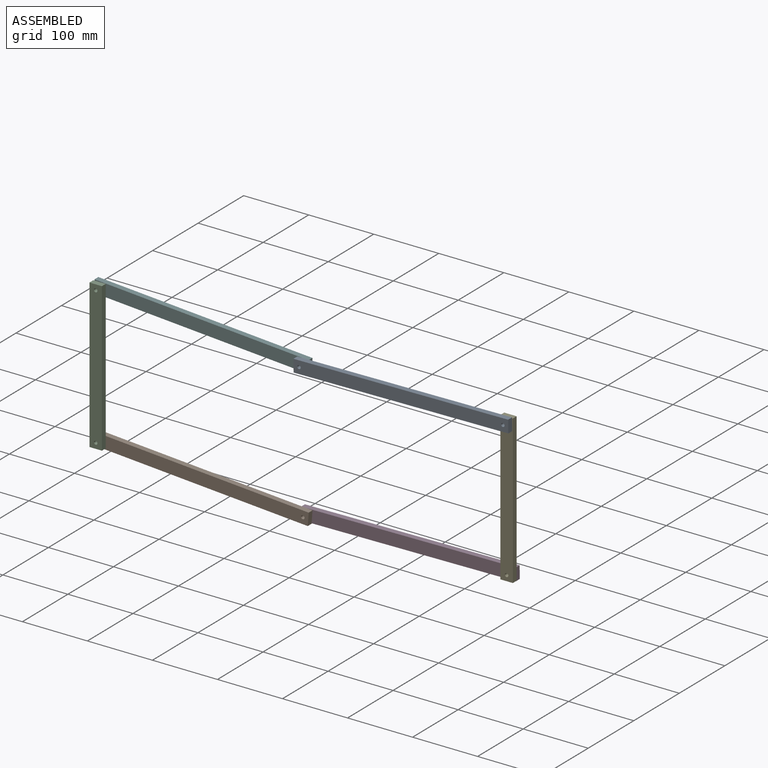
[diagram: assembled view]
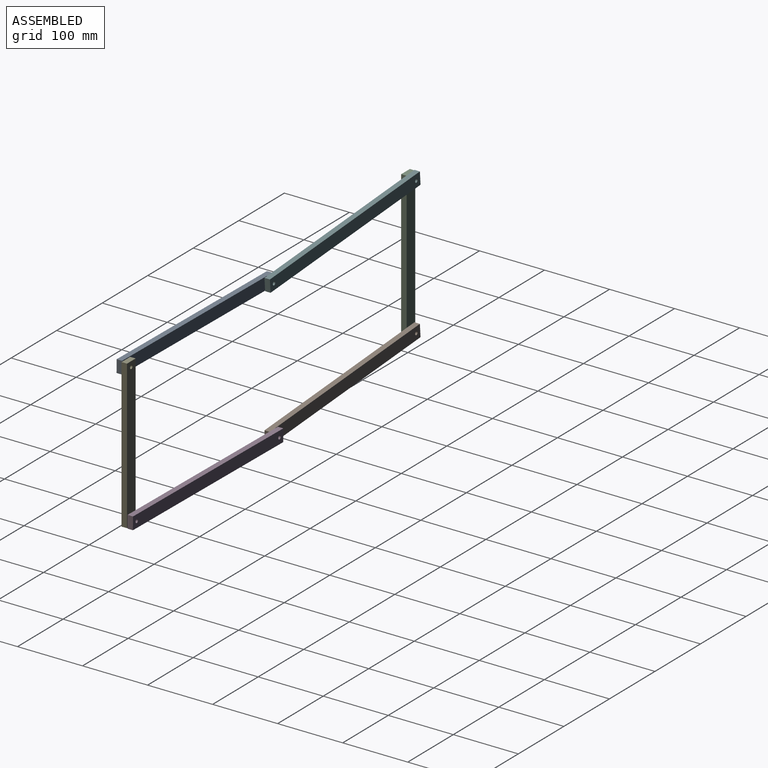
[diagram: assembled view, second angle]
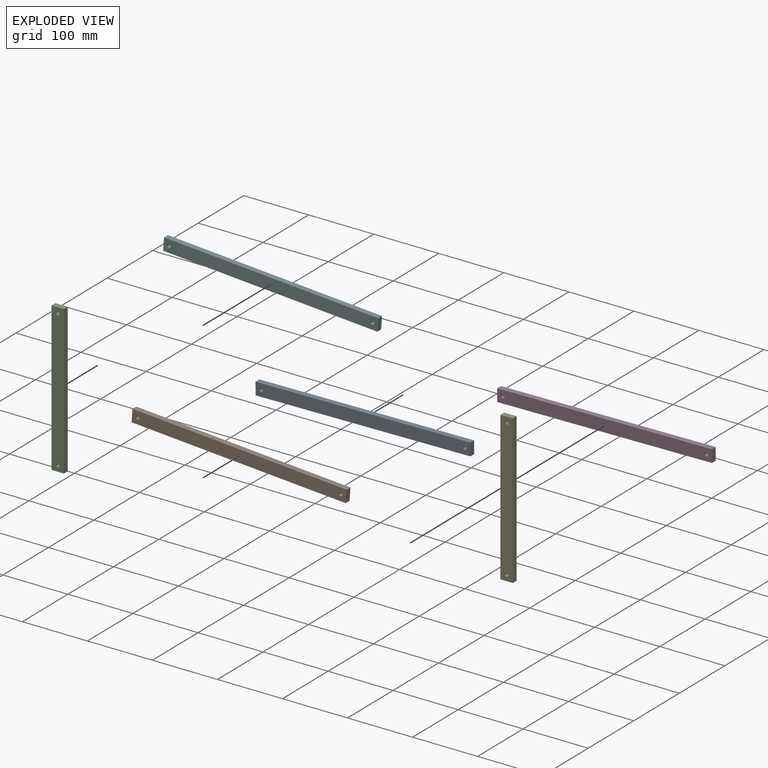
[diagram: exploded view]
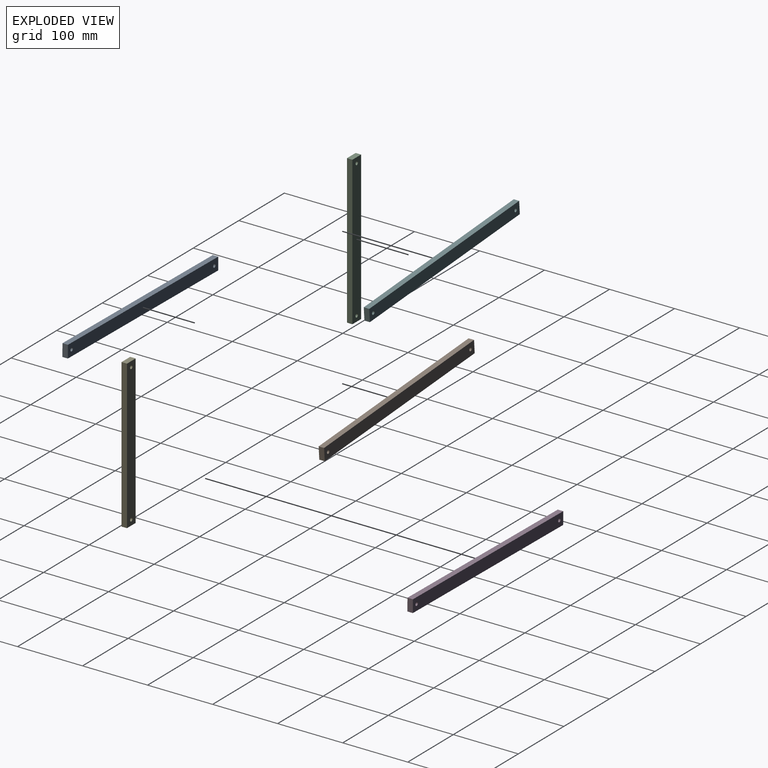
[diagram: exploded view, second angle]
ASSEMBLY  parts=6 mates=6
PART A: 8 faces, bbox 330.2x8.4x19.1 mm
  f0: plane 19.05x8.38mm, normal (1,0,0), area 159.7mm2, adj f1,f3,f4,f5
  f1: plane 330.2x8.38mm, normal (0,0,1), area 2767.7mm2, adj f0,f2,f4,f5
  f2: plane 19.05x8.38mm, normal (-1,0,0), area 159.7mm2, adj f1,f3,f4,f5
  f3: plane 330.2x8.38mm, normal (0,0,-1), area 2767.7mm2, adj f0,f2,f4,f5
  f4: plane 330.2x19.05mm, normal (0,-1,0), area 6246mm2, adj f0,f1,f2,f3,f6,f7
  f5: plane 330.2x19.05mm, normal (0,1,0), area 6246mm2, adj f0,f1,f2,f3,f6,f7
  f6: cylinder r=2.65mm len=8.38mm, axis (0,-1,0), area 139.8mm2, adj f4,f5
  f7: cylinder r=2.65mm len=8.38mm, axis (0,-1,0), area 139.8mm2, adj f4,f5
PART B: same geometry as A
PART C: 8 faces, bbox 19.1x8.4x228.6 mm
  f0: plane 19.05x8.38mm, normal (0,0,-1), area 159.7mm2, adj f1,f3,f4,f5
  f1: plane 228.6x8.38mm, normal (1,0,0), area 1916.1mm2, adj f0,f2,f4,f5
  f2: plane 19.05x8.38mm, normal (0,0,1), area 159.7mm2, adj f1,f3,f4,f5
  f3: plane 228.6x8.38mm, normal (-1,0,0), area 1916.1mm2, adj f0,f2,f4,f5
  f4: plane 228.6x19.05mm, normal (0,-1,0), area 4310.6mm2, adj f0,f1,f2,f3,f6,f7
  f5: plane 228.6x19.05mm, normal (0,1,0), area 4310.6mm2, adj f0,f1,f2,f3,f6,f7
  f6: cylinder r=2.65mm len=8.38mm, axis (0,-1,0), area 139.8mm2, adj f4,f5
  f7: cylinder r=2.65mm len=8.38mm, axis (0,-1,0), area 139.8mm2, adj f4,f5
PART D: same geometry as A
PART E: same geometry as C
PART F: same geometry as A
PLACE A rot(axis=(0,-1,0),0.6deg) t=(-107.08,17.12,99.48)mm
PLACE B rot(axis=(0,1,0),4.2deg) t=(-420.08,25.5,-102.5)mm
PLACE C t=(-576.37,17.12,14.99)mm
PLACE D rot(axis=(0,-1,0),0.6deg) t=(-107.08,33.88,-112.36)mm
PLACE E t=(49.63,25.5,-4.73)mm fixed
PLACE F rot(axis=(0,1,0),4.2deg) t=(-420.08,25.5,109.34)mm
MATE revolute D.f6 <-> B.f7  axis (0,-1,0) through (-263.79,29.69,-114.07)mm
MATE revolute E.f6 <-> A.f7  axis (0,-1,0) through (49.63,21.31,101.19)mm
MATE revolute A.f6 <-> F.f7  axis (0,1,0) through (-263.79,21.31,97.76)mm
MATE revolute B.f6 <-> C.f7  axis (0,-1,0) through (-576.37,21.31,-90.92)mm
MATE revolute F.f6 <-> C.f6  axis (0,-1,0) through (-576.37,21.31,120.91)mm
MATE revolute D.f7 <-> E.f7  axis (0,-1,0) through (49.63,29.69,-110.64)mm
